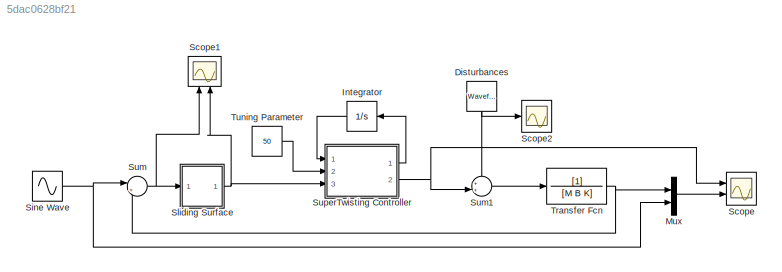
MODEL slx_5dac0628bf21
KIND model
CONFIG AbsTol = auto
CONFIG FixedStep = auto
CONFIG MaxStep = auto
CONFIG MinStep = auto
CONFIG RelTol = 1e-3
CONFIG SampleTimeConstraint = Unconstrained
CONFIG Solver = VariableStepAuto
CONFIG SolverMode = Auto
CONFIG SolverName = VariableStepAuto
CONFIG StartTime = 0.0
CONFIG StopTime = 10.0
BLOCK [Reference] Disturbances  REF=simulink/Sources/Waveform
Generator
  Ports = [0, 1]
  SourceBlock = simulink/Sources/Waveform\nGenerator
  SourceType = WaveformGenerator
BLOCK [Integrator] Integrator
  Ports = [1, 1]
BLOCK [Mux] Mux
  DisplayOption = bar
  Inputs = 2
  Ports = [2, 1]
BLOCK [Scope] Scope
  NumInputPorts = 2
  Ports = [2]
  ScopeSpecificationString = Simulink.scopes.TimeScopeBlockCfg('CurrentConfiguration', extmgr.ConfigurationSet(extmgr.Configuration('Core','General UI',true),extmgr.Configuration('Core','Source UI',true),extmgr.Configuration('Sources','WiredSimulink',true),extmgr.Configuration('Visuals','Time Domain',true,'SerializedDisplays',{struct('MinYLimReal','-19.34803','MaxYLimReal','21.95744','YLabelReal','','MinYLimMag','0.00000','Ma...<+1980ch>
BLOCK [Scope] Scope1
  NumInputPorts = 2
  Ports = [2]
  ScopeSpecificationString = Simulink.scopes.TimeScopeBlockCfg('CurrentConfiguration', extmgr.ConfigurationSet(extmgr.Configuration('Core','General UI',true),extmgr.Configuration('Core','Source UI',true),extmgr.Configuration('Sources','WiredSimulink',true,'DataLoggingVariableName','ScopeData1'),extmgr.Configuration('Visuals','Time Domain',true,'SerializedDisplays',{struct('MinYLimReal','-0.75974','MaxYLimReal','0.52289','YLab...<+1969ch>
BLOCK [Scope] Scope2
  Ports = [1]
  ScopeSpecificationString = Simulink.scopes.TimeScopeBlockCfg('CurrentConfiguration', extmgr.ConfigurationSet(extmgr.Configuration('Core','General UI',true),extmgr.Configuration('Core','Source UI',true),extmgr.Configuration('Sources','WiredSimulink',true,'DataLoggingVariableName','ScopeData2'),extmgr.Configuration('Visuals','Time Domain',true,'SerializedDisplays',{struct('MinYLimReal','-1.46686','MaxYLimReal','5.46686','YLab...<+1371ch>
BLOCK [Sin] Sine Wave
  Frequency = 2
  Ports = [0, 1]
  SampleTime = 0
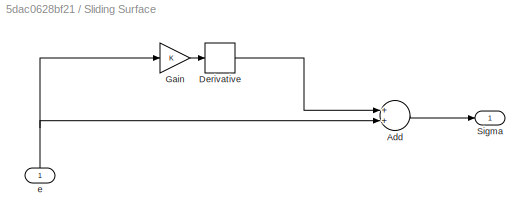
BLOCK [SubSystem] Sliding Surface 
  Ports = [1, 1]
  RequestExecContextInheritance = off
  Variant = off
BLOCK [Sum] Sliding Surface /Add
  InputSameDT = off
  OutDataTypeStr = Inherit: Inherit via internal rule
  Ports = [2, 1]
  SaturateOnIntegerOverflow = off
BLOCK [Derivative] Sliding Surface /Derivative
BLOCK [Gain] Sliding Surface /Gain
  OutDataTypeStr = Inherit: Inherit via internal rule
  ParamDataTypeStr = Inherit: Inherit via internal rule
  SaturateOnIntegerOverflow = off
BLOCK [Outport] Sliding Surface /Sigma
  IconDisplay = Port number
BLOCK [Inport] Sliding Surface /e
  IconDisplay = Port number
BLOCK [Sum] Sum
  IconShape = round
  InputSameDT = off
  Inputs = |+-
  OutDataTypeStr = Inherit: Inherit via internal rule
  Ports = [2, 1]
  SaturateOnIntegerOverflow = off
BLOCK [Sum] Sum1
  IconShape = round
  InputSameDT = off
  Inputs = ++|
  OutDataTypeStr = Inherit: Inherit via internal rule
  Ports = [2, 1]
  SaturateOnIntegerOverflow = off
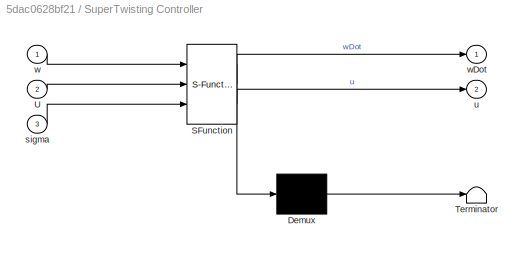
BLOCK [SubSystem] SuperTwisting Controller
  ErrorFcn = Stateflow.Translate.translate
  PermitHierarchicalResolution = ExplicitOnly
  Ports = [3, 2]
  RequestExecContextInheritance = off
  SFBlockType = MATLAB Function
  TreatAsAtomicUnit = on
  Variant = off
BLOCK [Demux] SuperTwisting Controller/ Demux 
  Outputs = 1
  Ports = [1, 1]
BLOCK [S-Function] SuperTwisting Controller/ SFunction 
  EnableBusSupport = on
  FunctionName = sf_sfun
  PortCounts = [3 3]
  Ports = [3, 3]
  SFunctionDeploymentMode = off
  Tag = Stateflow S-Function SuperTwistingSMC 2
BLOCK [Terminator] SuperTwisting Controller/ Terminator 
BLOCK [Inport] SuperTwisting Controller/U
  IconDisplay = Port number
  Port = 2
BLOCK [Inport] SuperTwisting Controller/sigma
  IconDisplay = Port number
  Port = 3
BLOCK [Outport] SuperTwisting Controller/u
  IconDisplay = Port number
  Port = 2
BLOCK [Inport] SuperTwisting Controller/w
  IconDisplay = Port number
BLOCK [Outport] SuperTwisting Controller/wDot
  IconDisplay = Port number
BLOCK [TransferFcn] Transfer Fcn
  Denominator = [M B K]
BLOCK [Constant] Tuning Parameter
  Value = 50
NET Disturbances:1 -> Scope2:1, Sum1:1
LINE Integrator:1 -> SuperTwisting Controller:1
LINE Mux:1 -> Scope:2
NET Sine Wave:1 -> Mux:2, Sum:1
LINE Sliding Surface /Add:1 -> Sliding Surface /Sigma:1
LINE Sliding Surface /Derivative:1 -> Sliding Surface /Add:1
LINE Sliding Surface /Gain:1 -> Sliding Surface /Derivative:1
NET Sliding Surface /e:1 -> Sliding Surface /Add:2, Sliding Surface /Gain:1
NET Sliding Surface :1 -> Scope1:2, SuperTwisting Controller:3
LINE Sum1:1 -> Transfer Fcn:1
NET Sum:1 -> Scope1:1, Sliding Surface :1
LINE SuperTwisting Controller:1 -> Integrator:1
NET SuperTwisting Controller:2 -> Scope:1, Sum1:2
NET Transfer Fcn:1 -> Mux:1, Sum:2
LINE Tuning Parameter:1 -> SuperTwisting Controller:2
note: NET lines group one-source signal fan-out (src -> all destinations, sorted); 1:1 wires keep LINE
CHART SuperTwisting
Controller states=1 transitions=1
  STATE_LABEL 'eML_blk_kernel()'
  STATE_LABEL 'SCRIPT:\nfunction [wDot,u] = fcn(w,U,sigma)\n\nlambda = sqrt(U);\nW = 1.1*U;\n\nu = lambda*sqrt(abs(sigma))*sign(sigma) + w;\nwDot = W*sign(sigma);'
